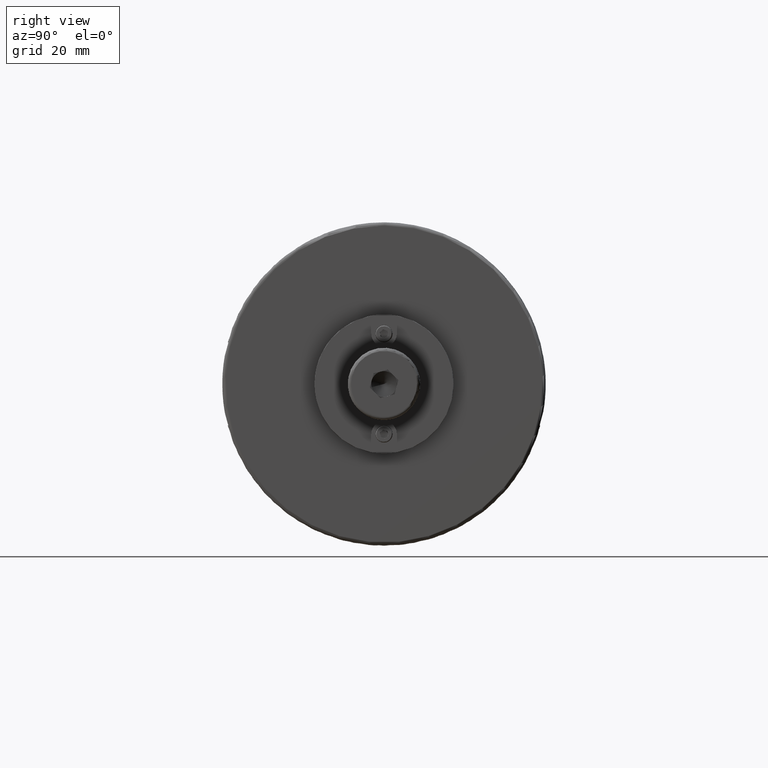
[diagram: clean part render]
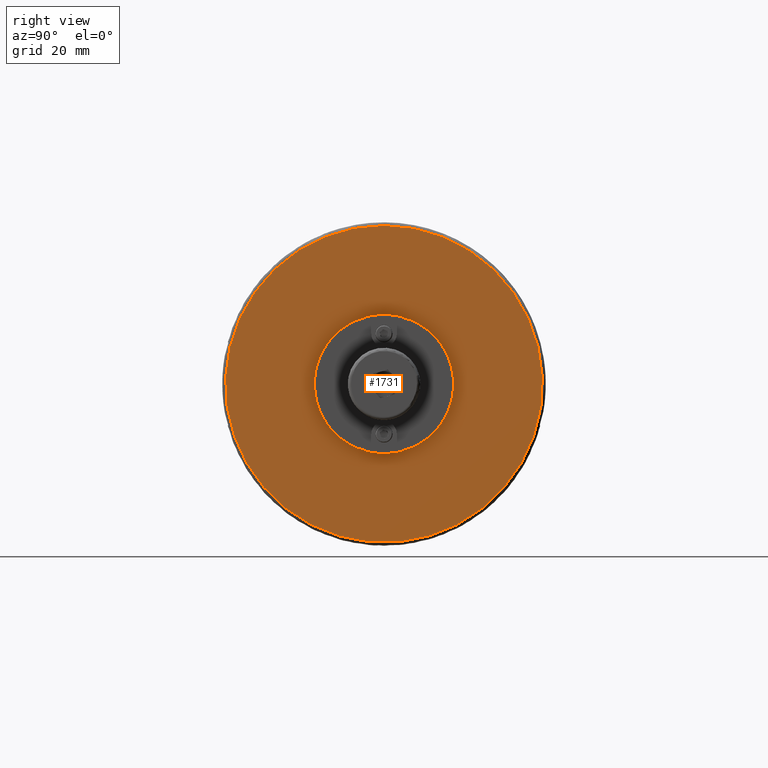
[diagram: same view with one face highlighted and labeled with its STEP entity id]
A machine part, right view. The second image highlights one B-rep face of the part: STEP entity #1731.
In plain terms, the highlighted planar face has unit normal (1, 0, 0).
Its self-contained STEP definition (entity closure, byte-faithful):
#137=FACE_BOUND('',#413,.T.);
#153=CIRCLE('',#1901,21.5);
#200=CIRCLE('',#1992,49.);
#301=FACE_OUTER_BOUND('',#412,.T.);
#412=EDGE_LOOP('',(#1393));
#413=EDGE_LOOP('',(#1394));
#728=VERTEX_POINT('',#2700);
#804=VERTEX_POINT('',#3039);
#897=EDGE_CURVE('',#728,#728,#153,.T.);
#1012=EDGE_CURVE('',#804,#804,#200,.T.);
#1393=ORIENTED_EDGE('',*,*,#1012,.T.);
#1394=ORIENTED_EDGE('',*,*,#897,.T.);
#1647=PLANE('',#1994);
#1731=ADVANCED_FACE('',(#301,#137),#1647,.T.);
#1901=AXIS2_PLACEMENT_3D('',#2702,#2146,#2147);
#1992=AXIS2_PLACEMENT_3D('',#3040,#2377,#2378);
#1994=AXIS2_PLACEMENT_3D('',#3042,#2381,#2382);
#2146=DIRECTION('center_axis',(-1.,0.,0.));
#2147=DIRECTION('ref_axis',(0.,0.,-1.));
#2377=DIRECTION('center_axis',(1.,0.,0.));
#2378=DIRECTION('ref_axis',(0.,0.,-1.));
#2381=DIRECTION('center_axis',(1.,0.,0.));
#2382=DIRECTION('ref_axis',(0.,0.,-1.));
#2700=CARTESIAN_POINT('',(38.,-2.63299061816681E-15,21.5));
#2702=CARTESIAN_POINT('Origin',(38.,0.,0.));
#3039=CARTESIAN_POINT('',(38.,-6.00076931582203E-15,49.));
#3040=CARTESIAN_POINT('Origin',(38.,0.,0.));
#3042=CARTESIAN_POINT('Origin',(38.,0.,0.));